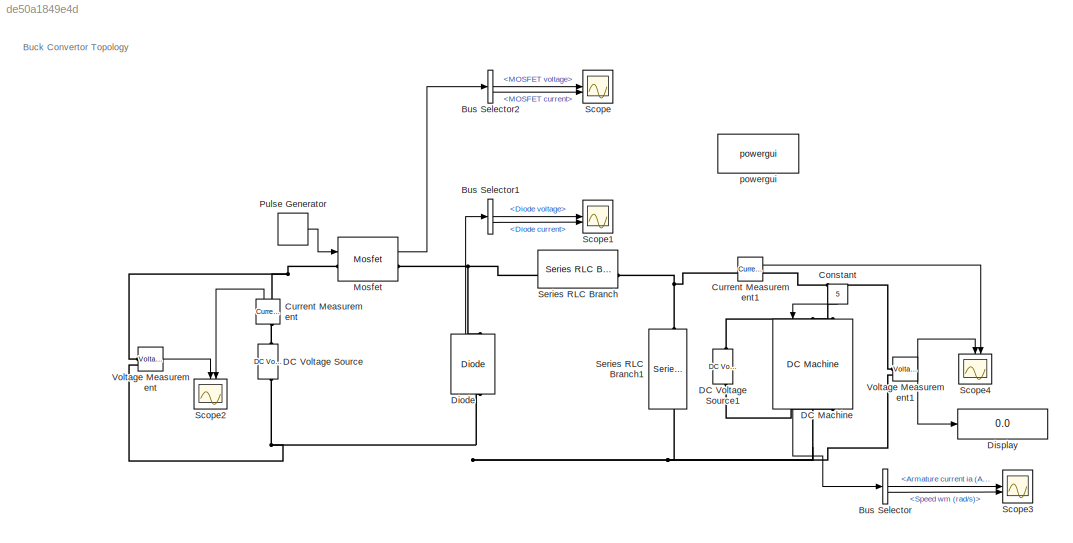
MODEL slx_de50a1849e4d
KIND model
CONFIG AbsTol = auto
CONFIG EnableMultiTasking = off
CONFIG FixedStep = auto
CONFIG MaxStep = auto
CONFIG MinStep = auto
CONFIG RelTol = 1e-3
CONFIG SampleTimeConstraint = Unconstrained
CONFIG SolverName = VariableStepAuto
CONFIG StartTime = 0.0
CONFIG StopTime = 0.5
BLOCK [BusSelector] Bus Selector
  OutputSignals = Armature current ia (A),Speed wm (rad/s)
BLOCK [BusSelector] Bus Selector1
  OutputSignals = Diode voltage,Diode current
BLOCK [BusSelector] Bus Selector2
  OutputSignals = MOSFET voltage,MOSFET current
BLOCK [Constant] Constant
  NameLocation = left
  Value = 5
BLOCK [Reference] Current Measurement  REF=spsCurrentMeasurementLib/Current Measurement
  LibrarySourceBlock = sps_lib/Sensors and Measurements/Current Measurement
  NameLocation = right
  SourceBlock = spsCurrentMeasurementLib/Current Measurement
  SourceType = Current Measurement
  UserDataPersistent = on
BLOCK [Reference] Current Measurement1  REF=spsCurrentMeasurementLib/Current Measurement
  LibrarySourceBlock = sps_lib/Sensors and Measurements/Current Measurement
  SourceBlock = spsCurrentMeasurementLib/Current Measurement
  SourceType = Current Measurement
  UserDataPersistent = on
BLOCK [Reference] DC Machine  REF=spsDCMachineLib/DC Machine
  LibrarySourceBlock = sps_lib/Electrical Machines/DC Machine
  NameLocation = left
  SourceBlock = spsDCMachineLib/DC Machine
  SourceType = DC machine
BLOCK [Reference] DC Voltage Source  REF=spsDCVoltageSourceLib/DC Voltage Source
  LibrarySourceBlock = sps_lib/Sources/DC Voltage Source
  SourceBlock = spsDCVoltageSourceLib/DC Voltage Source
  SourceType = DC Voltage Source
BLOCK [Reference] DC Voltage Source1  REF=spsDCVoltageSourceLib/DC Voltage Source
  LibrarySourceBlock = sps_lib/Sources/DC Voltage Source
  SourceBlock = spsDCVoltageSourceLib/DC Voltage Source
  SourceType = DC Voltage Source
BLOCK [Reference] Diode  REF=spsDiodeLib/Diode
  LibrarySourceBlock = sps_lib/Power Electronics/Diode
  NameLocation = right
  SourceBlock = spsDiodeLib/Diode
  SourceType = Diode
BLOCK [Display] Display
  Decimation = 1
BLOCK [Reference] Mosfet  REF=spsMosfetLib/Mosfet
  LibrarySourceBlock = sps_lib/Power Electronics/Mosfet
  SourceBlock = spsMosfetLib/Mosfet
  SourceType = Mosfet
BLOCK [DiscretePulseGenerator] Pulse Generator
  Period = 5e-5
  PulseType = Time based
  PulseWidth = 80
BLOCK [Scope] Scope
  ActiveDisplayYMaximum = 253.15958163403997
  ActiveDisplayYMinimum = -28.128842403782212
  ContainerLayout = {"WindowBounds":[320,156,1280,768],"gridDimensions":{"w":1,"h":1},"tileCount":1,"tileCoverage":1,"columnWeights":1,"rowWeights":1,"tileOccupancy":{}}
  Floating = off
  GraphicalSettings = {"Style":{"BackgroundColor":[1,1,1],"AxesColor":[1,1,1],"LabelsColor":[0,0,0],"PreserveColors":false,"Visible":[true,true],"LineStyle":["-","-"],"LineWidth":[1.5,1.5],"BarWidth":[0.9,0.9],"LineColor":[[0.9294117647058824,0.6941176470588235,0.12549019607843137],[0.06666666666666667,0.44313725490196076,0.7450980392156863]],"LineFaceAlpha":[1,1],"LineEdgeAlpha":[1,1],"Marker":["none","none"],"FontSiz...<+2170ch>
  MultipleDisplayCache = [{"MaxYLimMag":253.15958163403997,"MaxYLimReal":253.15958163403997,"MinYLimMag":0,"MinYLimReal":-28.128842403782212,"PlotAsMagnitudePhase":false,"ShowGrid":true,"ShowLegend":false,"Title":"%<SignalLabel>","YLabel":"Voltage (V) and Current (A)"}]
  NumInputPorts = 2
  ScopeFrameLocation = container
  ShowTimeAxisLabel = on
  TimeUnits = Seconds
  WasSavedAsWebScope = on
  WindowPosition = [0 12 1920 1057]
  YLabel = Voltage (V) and Current (A)
BLOCK [Scope] Scope1
  ActiveDisplayYMaximum = 62.700075842760668
  ActiveDisplayYMinimum = -256.90834199693256
  ContainerLayout = {"WindowBounds":[320,156,1280,768],"gridDimensions":{"w":1,"h":1},"tileCount":1,"tileCoverage":1,"columnWeights":1,"rowWeights":1,"tileOccupancy":{}}
  DataLoggingVariableName = ScopeData1
  Floating = off
  GraphicalSettings = {"Style":{"BackgroundColor":[1,1,1],"AxesColor":[1,1,1],"LabelsColor":[0,0,0],"PreserveColors":false,"Visible":[true,true],"LineStyle":["-","-"],"LineWidth":[1.5,1.5],"BarWidth":[0.9,0.9],"LineColor":[[0.9294117647058824,0.6941176470588235,0.12549019607843137],[0.06666666666666667,0.44313725490196076,0.7450980392156863]],"LineFaceAlpha":[1,1],"LineEdgeAlpha":[1,1],"Marker":["none","none"],"FontSiz...<+2164ch>
  MultipleDisplayCache = [{"MaxYLimMag":256.90834199693256,"MaxYLimReal":62.700075842760668,"MinYLimMag":0,"MinYLimReal":-256.90834199693256,"PlotAsMagnitudePhase":false,"ShowGrid":true,"ShowLegend":false,"Title":"%<SignalLabel>","YLabel":"Voltage (V) and Current (A)"}]
  NumInputPorts = 2
  ScopeFrameLocation = container
  ShowTimeAxisLabel = on
  TimeUnits = Seconds
  WasSavedAsWebScope = on
  WindowPosition = [-4 -27 1920 1057]
  YLabel = Voltage (V) and Current (A)
BLOCK [Scope] Scope2
  ActiveDisplayYMaximum = 241.91030963597217
  ActiveDisplayYMinimum = -26.057598731614576
  ContainerLayout = {"WindowBounds":[320,156,1280,768],"gridDimensions":{"w":1,"h":1},"tileCount":1,"tileCoverage":1,"columnWeights":1,"rowWeights":1,"tileOccupancy":{}}
  DataLoggingVariableName = ScopeData2
  Floating = off
  GraphicalSettings = {"Style":{"BackgroundColor":[1,1,1],"AxesColor":[1,1,1],"LabelsColor":[0,0,0],"PreserveColors":false,"Visible":[true,true],"LineStyle":["-","-"],"LineWidth":[1.5,1.5],"BarWidth":[0.9,0.9],"LineColor":[[0.9294117647058824,0.6941176470588235,0.12549019607843137],[0.06666666666666667,0.44313725490196076,0.7450980392156863]],"LineFaceAlpha":[1,1],"LineEdgeAlpha":[1,1],"Marker":["none","none"],"FontSiz...<+2182ch>
  MultipleDisplayCache = [{"MaxYLimMag":241.91030963597217,"MaxYLimReal":241.91030963597217,"MinYLimMag":0,"MinYLimReal":-26.057598731614576,"PlotAsMagnitudePhase":false,"ShowGrid":true,"ShowLegend":false,"Title":"%<SignalLabel>","YLabel":"Voltage (V) and Current (A)"}]
  NameLocation = left
  NumInputPorts = 2
  ScopeFrameLocation = container
  ShowTimeAxisLabel = on
  TimeUnits = Seconds
  WasSavedAsWebScope = on
  WindowPosition = [1 1 1920 1057]
  YLabel = Voltage (V) and Current (A)
BLOCK [Scope] Scope3
  ActiveDisplayYMaximum = 168.34562407576172
  ActiveDisplayYMinimum = -18.773978924329452
  ContainerLayout = {"WindowBounds":[320,156,1280,768],"gridDimensions":{"w":1,"h":1},"tileCount":1,"tileCoverage":1,"columnWeights":1,"rowWeights":1,"tileOccupancy":{}}
  DataLoggingVariableName = ScopeData3
  Floating = off
  GraphicalSettings = {"Style":{"BackgroundColor":[1,1,1],"AxesColor":[1,1,1],"LabelsColor":[0,0,0],"PreserveColors":false,"Visible":[true,true],"LineStyle":["-","-"],"LineWidth":[1.5,1.5],"BarWidth":[0.9,0.9],"LineColor":[[0.9294117647058824,0.6941176470588235,0.12549019607843137],[0.06666666666666667,0.44313725490196076,0.7450980392156863]],"LineFaceAlpha":[1,1],"LineEdgeAlpha":[1,1],"Marker":["none","none"],"FontSiz...<+2190ch>
  MultipleDisplayCache = [{"MaxYLimMag":168.34562407576172,"MaxYLimReal":168.34562407576172,"MinYLimMag":0,"MinYLimReal":-18.773978924329452,"PlotAsMagnitudePhase":false,"ShowGrid":true,"ShowLegend":false,"Title":"%<SignalLabel>","YLabel":"Voltage (V) and Current (A)"}]
  NumInputPorts = 2
  ScopeFrameLocation = container
  ShowTimeAxisLabel = on
  TimeUnits = Seconds
  WasSavedAsWebScope = on
  WindowPosition = [1 1 1920 1057]
  YLabel = Voltage (V) and Current (A)
BLOCK [Scope] Scope4
  ActiveDisplayYMaximum = 377.8142008773097
  ActiveDisplayYMinimum = -42.048265235612561
  DataLoggingVariableName = ScopeData4
  Floating = off
  GraphicalSettings = {"Style":{"BackgroundColor":[1,1,1],"AxesColor":[1,1,1],"LabelsColor":[0,0,0],"PreserveColors":false,"Visible":[true,true],"LineStyle":["-","-"],"LineWidth":[1.5,1.5],"BarWidth":[0.9,0.9],"LineColor":[[0.9294117647058824,0.6941176470588235,0.12549019607843137],[0.06666666666666667,0.44313725490196076,0.7450980392156863]],"LineFaceAlpha":[1,1],"LineEdgeAlpha":[1,1],"Marker":["none","none"],"FontSiz...<+2179ch>
  MultipleDisplayCache = [{"MaxYLimMag":377.8142008773097,"MaxYLimReal":377.8142008773097,"MinYLimMag":0,"MinYLimReal":-42.048265235612561,"PlotAsMagnitudePhase":false,"ShowGrid":true,"ShowLegend":false,"Title":"%<SignalLabel>","YLabel":"Voltage (V) and Current (A)"}]
  NameLocation = left
  NumInputPorts = 2
  ScopeFrameLocation = window
  ShowTimeAxisLabel = on
  TimeUnits = Seconds
  WasSavedAsWebScope = on
  WindowPosition = [1.000000,1.000000,1920.000000,1057.000000,]
  YLabel = Voltage (V) and Current (A)
BLOCK [Reference] Series RLC Branch  REF=spsSeriesRLCBranchLib/Series RLC Branch
  LibrarySourceBlock = sps_lib/Passives/Series RLC Branch
  SourceBlock = spsSeriesRLCBranchLib/Series RLC Branch
  SourceType = Series RLC Branch
BLOCK [Reference] Series RLC Branch1  REF=spsSeriesRLCBranchLib/Series RLC Branch
  LibrarySourceBlock = sps_lib/Passives/Series RLC Branch
  NameLocation = left
  SourceBlock = spsSeriesRLCBranchLib/Series RLC Branch
  SourceType = Series RLC Branch
BLOCK [Reference] Voltage Measurement  REF=spsVoltageMeasurementLib/Voltage Measurement
  LibrarySourceBlock = sps_lib/Sensors and Measurements/Voltage Measurement
  SourceBlock = spsVoltageMeasurementLib/Voltage Measurement
  SourceType = Voltage Measurement
  UserDataPersistent = on
BLOCK [Reference] Voltage Measurement1  REF=spsVoltageMeasurementLib/Voltage Measurement
  LibrarySourceBlock = sps_lib/Sensors and Measurements/Voltage Measurement
  SourceBlock = spsVoltageMeasurementLib/Voltage Measurement
  SourceType = Voltage Measurement
  UserDataPersistent = on
BLOCK [Reference] powergui  REF=sps_lib/powergui
  LibrarySourceBlock = sps_lib/powergui
  Priority = 1
  SourceBlock = sps_lib/powergui
  SourceType = PSB option menu block
ANNOTATION (root): Buck Convertor Topology
LINE Bus Selector1:1 -> Scope1:1
LINE Bus Selector1:2 -> Scope1:2
LINE Bus Selector2:1 -> Scope:1
LINE Bus Selector2:2 -> Scope:2
LINE Bus Selector:1 -> Scope3:1
LINE Bus Selector:2 -> Scope3:2
LINE Constant:1 -> DC Machine:1
LINE Current Measurement1:1 -> Scope4:2
LINE Current Measurement:1 -> Scope2:2
LINE DC Machine:1 -> Bus Selector:1
LINE Diode:1 -> Bus Selector1:1
LINE Mosfet:1 -> Bus Selector2:1
LINE Pulse Generator:1 -> Mosfet:1
NET Voltage Measurement1:1 -> Display:1, Scope4:1
LINE Voltage Measurement:1 -> Scope2:1
PNET net1: Current Measurement1:LConn1 -- Series RLC Branch1:LConn1 -- Series RLC Branch:RConn1
PNET net2: Current Measurement1:RConn1 -- DC Machine:LConn1 -- Voltage Measurement1:LConn1
PLINE Current Measurement:LConn1 -- DC Voltage Source:RConn1
PNET net3: Current Measurement:RConn1 -- Mosfet:LConn1 -- Voltage Measurement:LConn1
PLINE DC Machine:LConn2 -- DC Voltage Source1:RConn1
PNET net4: DC Machine:RConn1 -- DC Voltage Source:LConn1 -- Diode:LConn1 -- Series RLC Branch1:RConn1 -- Voltage Measurement1:LConn2 -- Voltage Measurement:LConn2
PLINE DC Machine:RConn2 -- DC Voltage Source1:LConn1
PNET net5: Diode:RConn1 -- Mosfet:RConn1 -- Series RLC Branch:LConn1
note: NET lines group one-source signal fan-out (src -> all destinations, sorted); 1:1 wires keep LINE; PNET lines group multi-terminal physical nets as a canonical sorted terminal list (undirected conserving connections); 2-terminal nets keep the pairwise PLINE form
